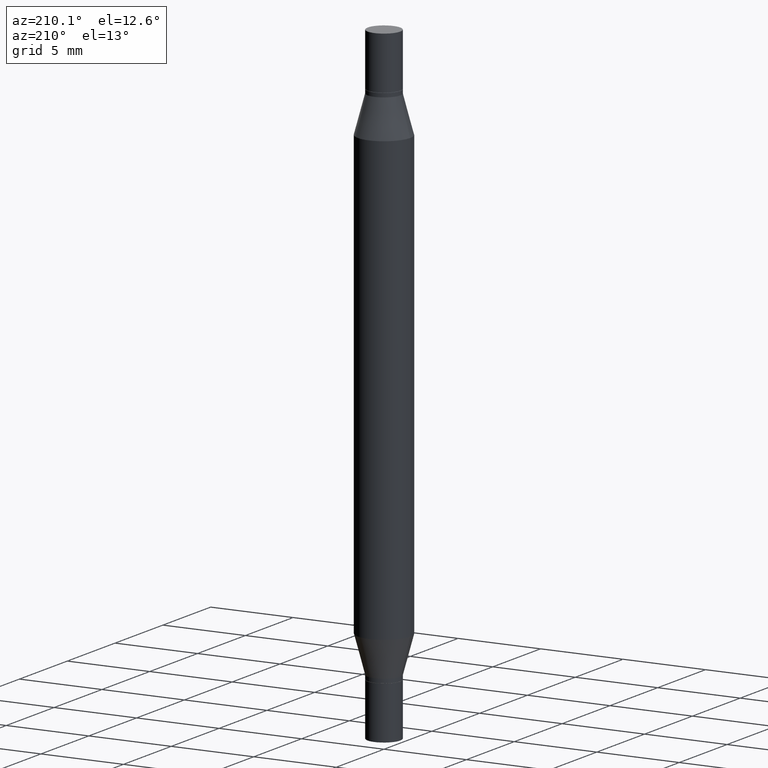
[diagram: clean part render]
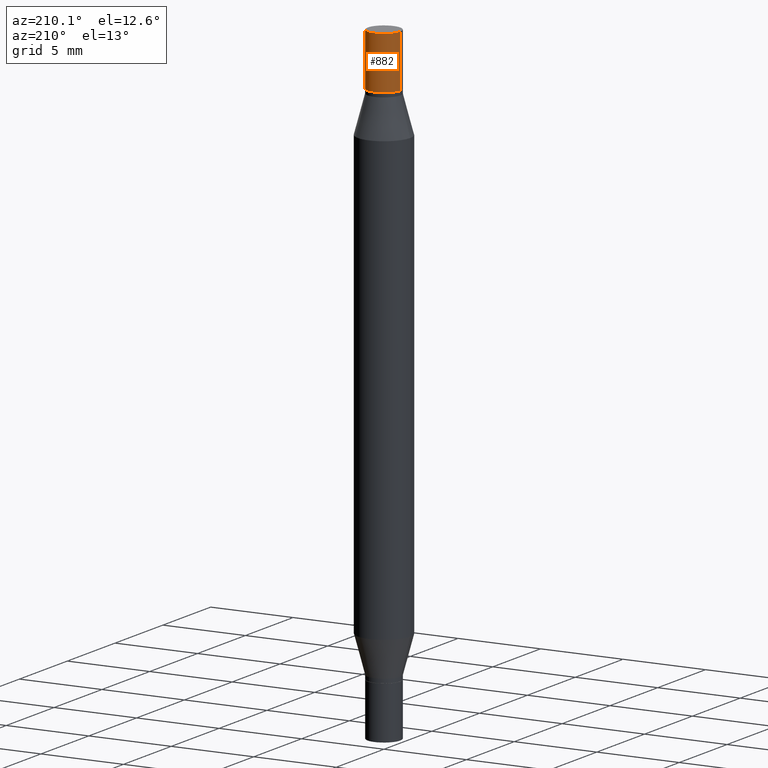
[diagram: same view with one face highlighted and labeled with its STEP entity id]
A machine part, auxiliary view. The second image highlights one B-rep face of the part: STEP entity #882.
In plain terms, the highlighted cylindrical surface (edge-blend (fillet) strip) has radius 0.9919 mm, axis along (-0, -0, -1).
Its self-contained STEP definition (entity closure, byte-faithful):
#24 = DIRECTION ( 'NONE',  ( 1.000000000000000000, -6.982962677686266711E-15, 0.000000000000000000 ) ) ;
#26 = CARTESIAN_POINT ( 'NONE',  ( 3.362519608504562821E-29, -4.362328197816536805E-16, -0.1249999999999993477 ) ) ;
#60 = CARTESIAN_POINT ( 'NONE',  ( 0.03905000000000000138, -5.510149517916849385E-15, -1.499999999999999556 ) ) ;
#106 = EDGE_CURVE ( 'NONE', #372, #452, #218, .T. ) ;
#130 = VERTEX_POINT ( 'NONE', #490 ) ;
#144 = CARTESIAN_POINT ( 'NONE',  ( -0.03905000000000000138, -4.969562378540222166E-15, -1.499999999999999556 ) ) ;
#152 = CARTESIAN_POINT ( 'NONE',  ( 0.000000000000000000, -5.237464825353201062E-15, -1.499999999999999556 ) ) ;
#199 = LINE ( 'NONE', #60, #448 ) ;
#218 = LINE ( 'NONE', #144, #844 ) ;
#239 = CARTESIAN_POINT ( 'NONE',  ( 0.03905000000000000138, -7.089175123453024480E-16, -0.1249999999999993477 ) ) ;
#274 = AXIS2_PLACEMENT_3D ( 'NONE', #26, #322, #624 ) ;
#281 = DIRECTION ( 'NONE',  ( -2.445468806185136877E-29, -3.491805094961123683E-15, -1.000000000000000000 ) ) ;
#305 = DIRECTION ( 'NONE',  ( 2.445468806185136597E-29, 3.491805094961124077E-15, 1.000000000000000000 ) ) ;
#322 = DIRECTION ( 'NONE',  ( 2.445468806185136597E-29, 3.491805094961124077E-15, 1.000000000000000000 ) ) ;
#364 = ORIENTED_EDGE ( 'NONE', *, *, #821, .T. ) ;
#372 = VERTEX_POINT ( 'NONE', #566 ) ;
#394 = CARTESIAN_POINT ( 'NONE',  ( 3.668203209277704895E-29, 2.428170884860868470E-19, 5.463695987328526437E-16 ) ) ;
#438 = ORIENTED_EDGE ( 'NONE', *, *, #631, .F. ) ;
#448 = VECTOR ( 'NONE', #281, 39.37007874015748143 ) ;
#449 = CIRCLE ( 'NONE', #274, 0.03905000000000000138 ) ;
#450 = DIRECTION ( 'NONE',  ( -2.445468806185136877E-29, -3.491805094961123683E-15, -1.000000000000000000 ) ) ;
#452 = VERTEX_POINT ( 'NONE', #742 ) ;
#485 = AXIS2_PLACEMENT_3D ( 'NONE', #152, #848, #24 ) ;
#488 = EDGE_CURVE ( 'NONE', #130, #952, #199, .T. ) ;
#490 = CARTESIAN_POINT ( 'NONE',  ( 0.03905000000000000138, -2.724418754751626287E-16, 5.463695987328526437E-16 ) ) ;
#541 = CYLINDRICAL_SURFACE ( 'NONE', #485, 0.03905000000000000138 ) ;
#549 = FACE_OUTER_BOUND ( 'NONE', #881, .T. ) ;
#566 = CARTESIAN_POINT ( 'NONE',  ( -0.03905000000000000138, 4.990744546639402167E-17, 5.463695987328533339E-16 ) ) ;
#624 = DIRECTION ( 'NONE',  ( 1.000000000000000000, -6.982962677686266711E-15, 0.000000000000000000 ) ) ;
#631 = EDGE_CURVE ( 'NONE', #130, #372, #778, .T. ) ;
#742 = CARTESIAN_POINT ( 'NONE',  ( -0.03905000000000000138, 4.990744546639399085E-17, -0.1249999999999993477 ) ) ;
#778 = CIRCLE ( 'NONE', #817, 0.03905000000000000138 ) ;
#817 = AXIS2_PLACEMENT_3D ( 'NONE', #394, #305, #829 ) ;
#821 = EDGE_CURVE ( 'NONE', #952, #452, #449, .T. ) ;
#822 = ORIENTED_EDGE ( 'NONE', *, *, #106, .F. ) ;
#829 = DIRECTION ( 'NONE',  ( 1.000000000000000000, -6.982962677686266711E-15, 0.000000000000000000 ) ) ;
#844 = VECTOR ( 'NONE', #450, 39.37007874015748143 ) ;
#848 = DIRECTION ( 'NONE',  ( -2.445468806185136597E-29, -3.491805094961124077E-15, -1.000000000000000000 ) ) ;
#881 = EDGE_LOOP ( 'NONE', ( #822, #438, #959, #364 ) ) ;
#882 = ADVANCED_FACE ( 'NONE', ( #549 ), #541, .T. ) ;
#952 = VERTEX_POINT ( 'NONE', #239 ) ;
#959 = ORIENTED_EDGE ( 'NONE', *, *, #488, .T. ) ;